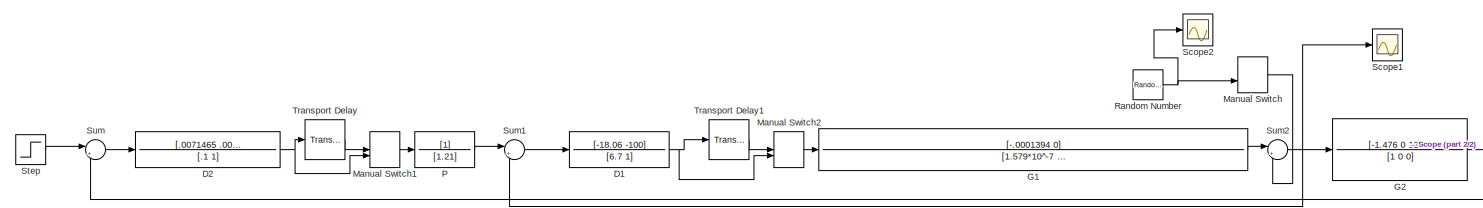
[diagram: root canvas - part 1/2, most of the canvas]
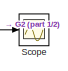
[diagram: root canvas - part 2/2, bottom right region]
MODEL slx_d33ea266d3bb
KIND model
CONFIG AbsTol = auto
CONFIG EnableMultiTasking = off
CONFIG FixedStep = auto
CONFIG MaxStep = auto
CONFIG MinStep = auto
CONFIG RelTol = 1e-3
CONFIG SampleTimeConstraint = Unconstrained
CONFIG SolverName = VariableStepAuto
CONFIG StartTime = 0.0
CONFIG StopTime = 10.0
BLOCK [TransferFcn] D1
  Denominator = [6.7 1]
  Numerator = [-18.06 -100]
BLOCK [TransferFcn] D2
  Denominator = [.1 1]
  Numerator = [.0071465 .0071465]
BLOCK [TransferFcn] G1
  Denominator = [1.579*10^-7 6.973*10^-6 -3.045*10^-5 -.000363]
  Numerator = [-.0001394 0]
BLOCK [TransferFcn] G2
  Denominator = [1 0 0]
  Numerator = [-1.476 0 128.9]
BLOCK [ManualSwitch] Manual Switch
BLOCK [ManualSwitch] Manual Switch1
BLOCK [ManualSwitch] Manual Switch2
BLOCK [TransferFcn] P
  Denominator = [1.21]
BLOCK [RandomNumber] Random Number
  SampleTime = 0.01
  Variance = .001
BLOCK [Scope] Scope
  Floating = off
  NumInputPorts = 1
  Ports = [1]
  ScopeSpecificationString = Simulink.scopes.TimeScopeBlockCfg('CurrentConfiguration', extmgr.ConfigurationSet(extmgr.Configuration('Core','General UI',true),extmgr.Configuration('Core','Source UI',true),extmgr.Configuration('Sources','WiredSimulink',true),extmgr.Configuration('Visuals','Time Domain',true,'SerializedDisplays',{struct('MinYLimReal','-0.32713','MaxYLimReal','1.62483','YLabelReal','','MinYLimMag','0.00000','MaxY...<+1379ch>
BLOCK [Scope] Scope1
  Floating = off
  NumInputPorts = 1
  Ports = [1]
  ScopeSpecificationString = Simulink.scopes.TimeScopeBlockCfg('CurrentConfiguration', extmgr.ConfigurationSet(extmgr.Configuration('Core','General UI',true),extmgr.Configuration('Core','Source UI',true),extmgr.Configuration('Sources','WiredSimulink',true,'DataLoggingVariableName','ScopeData1'),extmgr.Configuration('Visuals','Time Domain',true,'SerializedDisplays',{struct('MinYLimReal','-0.02836','MaxYLimReal','0.10858','YLab...<+1420ch>
BLOCK [Scope] Scope2
  Floating = off
  NumInputPorts = 1
  Ports = [1]
  ScopeSpecificationString = Simulink.scopes.TimeScopeBlockCfg('CurrentConfiguration', extmgr.ConfigurationSet(extmgr.Configuration('Core','General UI',true),extmgr.Configuration('Core','Source UI',true),extmgr.Configuration('Sources','WiredSimulink',true,'DataLoggingVariableName','ScopeData2'),extmgr.Configuration('Visuals','Time Domain',true,'SerializedDisplays',{struct('MinYLimReal','-0.11721','MaxYLimReal','0.1257','YLabe...<+1424ch>
BLOCK [Step] Step
  SampleTime = 0
BLOCK [Sum] Sum
  Inputs = |+-
  Ports = [2, 1]
BLOCK [Sum] Sum1
  Inputs = |+-
  Ports = [2, 1]
BLOCK [Sum] Sum2
  Inputs = |++
  Ports = [2, 1]
BLOCK [TransportDelay] Transport Delay
  DelayTime = 1/20
  Ports = [1, 1]
BLOCK [TransportDelay] Transport Delay1
  DelayTime = 1/200
  PadeOrder = 1
  Ports = [1, 1]
NET D1:1 -> Manual Switch2:2, Transport Delay1:1
NET D2:1 -> Manual Switch1:2, Transport Delay:1
LINE G1:1 -> Sum2:1
NET G2:1 -> Scope:1, Sum:2
LINE Manual Switch1:1 -> P:1
LINE Manual Switch2:1 -> G1:1
LINE Manual Switch:1 -> Sum2:2
LINE P:1 -> Sum1:1
NET Random Number:1 -> Manual Switch:2, Scope2:1
LINE Step:1 -> Sum:1
LINE Sum1:1 -> D1:1
NET Sum2:1 -> G2:1, Scope1:1, Sum1:2
LINE Sum:1 -> D2:1
LINE Transport Delay1:1 -> Manual Switch2:1
LINE Transport Delay:1 -> Manual Switch1:1
note: NET lines group one-source signal fan-out (src -> all destinations, sorted); 1:1 wires keep LINE
